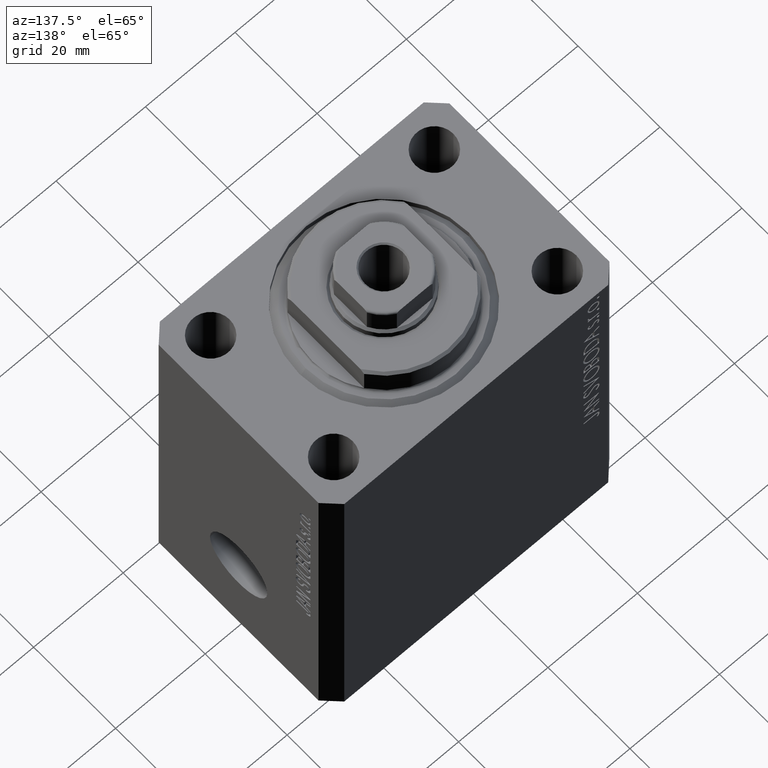
[diagram: clean part render]
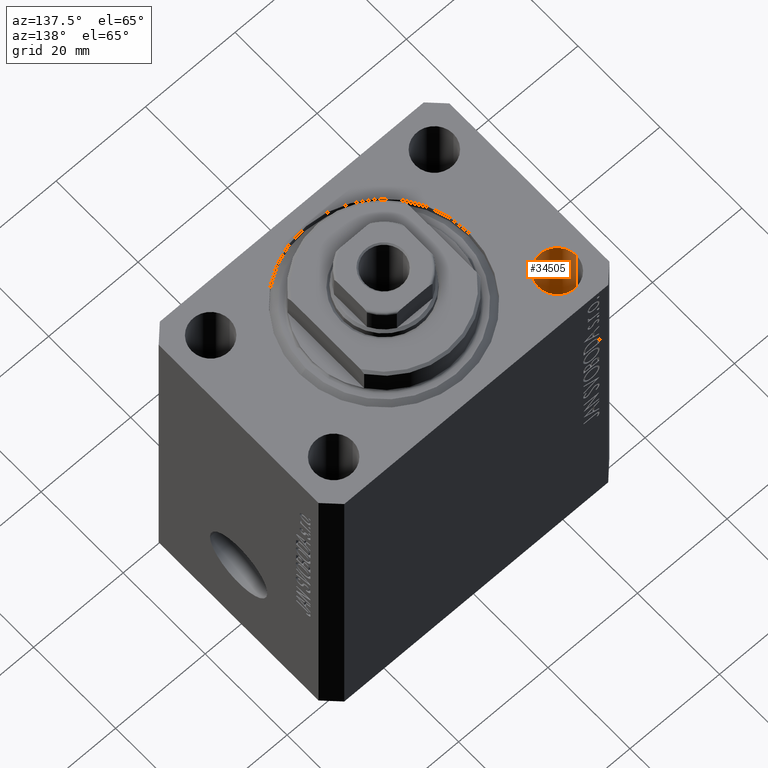
[diagram: same view with one face highlighted and labeled with its STEP entity id]
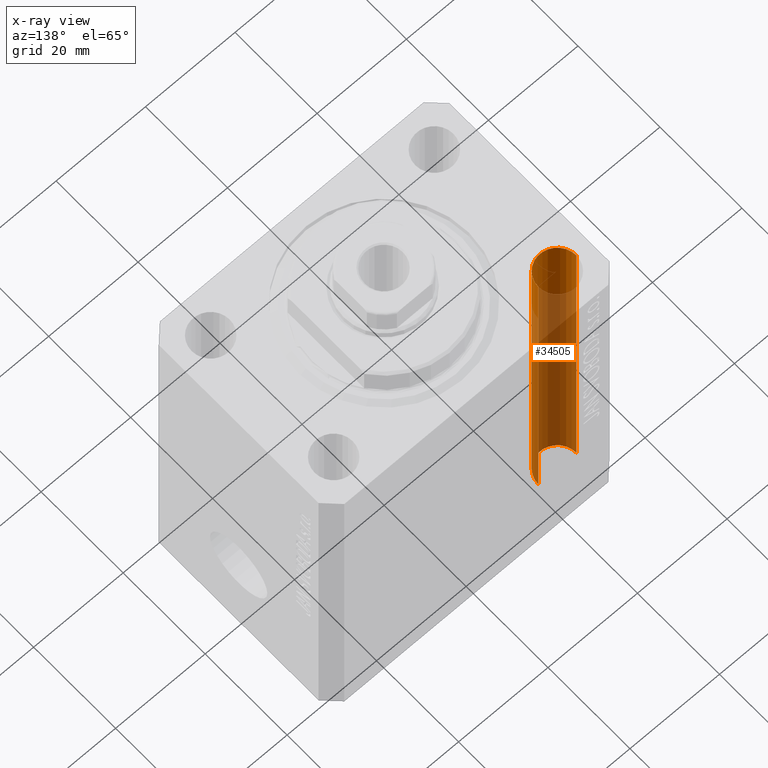
[diagram: x-ray of the same camera — body ghosted, the highlighted face saturated]
A machine part, auxiliary view. The second image highlights one B-rep face of the part: STEP entity #34505.
The next image is the same camera in x-ray: the body ghosted, the highlighted face saturated — about 78% of this face is hidden behind the body in this view.
In plain terms, the highlighted cylindrical surface (edge-blend (fillet) strip) has radius 4.25 mm, axis along (0, 0, 1).
Its self-contained STEP definition (entity closure, byte-faithful):
#399 = FACE_OUTER_BOUND ( 'NONE', #20841, .T. ) ;
#1785 = VERTEX_POINT ( 'NONE', #29779 ) ;
#2448 = DIRECTION ( 'NONE',  ( 1.000000000000000000, 0.000000000000000000, 0.000000000000000000 ) ) ;
#2455 = AXIS2_PLACEMENT_3D ( 'NONE', #9627, #15501, #29310 ) ;
#4717 = CARTESIAN_POINT ( 'NONE',  ( -29.25000000002137668, 14.99999999999999645, -77.00000000000000000 ) ) ;
#4929 = EDGE_CURVE ( 'NONE', #25472, #9326, #28815, .T. ) ;
#8020 = CARTESIAN_POINT ( 'NONE',  ( -29.25000000002137668, 14.99999999999999645, -89.02081528028548973 ) ) ;
#8973 = DIRECTION ( 'NONE',  ( -0.000000000000000000, -0.000000000000000000, 1.000000000000000000 ) ) ;
#9326 = VERTEX_POINT ( 'NONE', #41653 ) ;
#9627 = CARTESIAN_POINT ( 'NONE',  ( -25.00000000000000000, 14.99999999999999645, -77.00000000000000000 ) ) ;
#14433 = ORIENTED_EDGE ( 'NONE', *, *, #30747, .F. ) ;
#14612 = DIRECTION ( 'NONE',  ( -0.000000000000000000, -0.000000000000000000, 1.000000000000000000 ) ) ;
#15403 = CIRCLE ( 'NONE', #2455, 4.250000000021375790 ) ;
#15501 = DIRECTION ( 'NONE',  ( -0.000000000000000000, -0.000000000000000000, -1.000000000000000000 ) ) ;
#15738 = CARTESIAN_POINT ( 'NONE',  ( -20.74999999997862687, 14.99999999999999645, -89.02081528028548973 ) ) ;
#16228 = CARTESIAN_POINT ( 'NONE',  ( -25.00000000000000000, 14.99999999999999645, 0.000000000000000000 ) ) ;
#18219 = ORIENTED_EDGE ( 'NONE', *, *, #40740, .T. ) ;
#18225 = AXIS2_PLACEMENT_3D ( 'NONE', #31586, #14612, #35652 ) ;
#20381 = CIRCLE ( 'NONE', #23306, 4.250000000021375790 ) ;
#20841 = EDGE_LOOP ( 'NONE', ( #18219, #44727, #23669, #14433 ) ) ;
#23306 = AXIS2_PLACEMENT_3D ( 'NONE', #16228, #36366, #2448 ) ;
#23669 = ORIENTED_EDGE ( 'NONE', *, *, #34308, .T. ) ;
#24164 = VECTOR ( 'NONE', #8973, 1000.000000000000000 ) ;
#24983 = DIRECTION ( 'NONE',  ( -0.000000000000000000, -0.000000000000000000, 1.000000000000000000 ) ) ;
#25265 = VERTEX_POINT ( 'NONE', #32796 ) ;
#25472 = VERTEX_POINT ( 'NONE', #4717 ) ;
#28815 = LINE ( 'NONE', #8020, #32354 ) ;
#29310 = DIRECTION ( 'NONE',  ( 1.000000000000000000, 0.000000000000000000, 0.000000000000000000 ) ) ;
#29779 = CARTESIAN_POINT ( 'NONE',  ( -20.74999999997862687, 14.99999999999999645, -77.00000000000000000 ) ) ;
#30747 = EDGE_CURVE ( 'NONE', #1785, #25265, #37405, .T. ) ;
#31586 = CARTESIAN_POINT ( 'NONE',  ( -25.00000000000000000, 14.99999999999999645, -89.02081528028548973 ) ) ;
#32354 = VECTOR ( 'NONE', #24983, 1000.000000000000000 ) ;
#32796 = CARTESIAN_POINT ( 'NONE',  ( -20.74999999997862687, 14.99999999999999645, 0.000000000000000000 ) ) ;
#34308 = EDGE_CURVE ( 'NONE', #9326, #25265, #20381, .T. ) ;
#34505 = ADVANCED_FACE ( 'NONE', ( #399 ), #41768, .F. ) ;
#35652 = DIRECTION ( 'NONE',  ( 1.000000000000000000, 0.000000000000000000, 0.000000000000000000 ) ) ;
#36366 = DIRECTION ( 'NONE',  ( 0.000000000000000000, 0.000000000000000000, 1.000000000000000000 ) ) ;
#37405 = LINE ( 'NONE', #15738, #24164 ) ;
#40740 = EDGE_CURVE ( 'NONE', #1785, #25472, #15403, .T. ) ;
#41653 = CARTESIAN_POINT ( 'NONE',  ( -29.25000000002137668, 14.99999999999999645, 0.000000000000000000 ) ) ;
#41768 = CYLINDRICAL_SURFACE ( 'NONE', #18225, 4.250000000021375790 ) ;
#44727 = ORIENTED_EDGE ( 'NONE', *, *, #4929, .T. ) ;